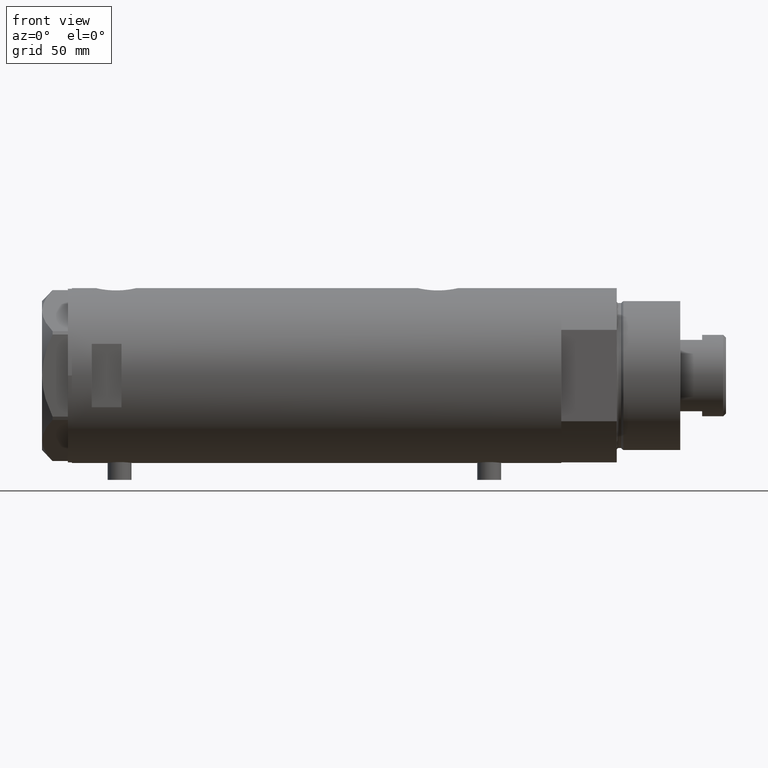
[diagram: clean part render]
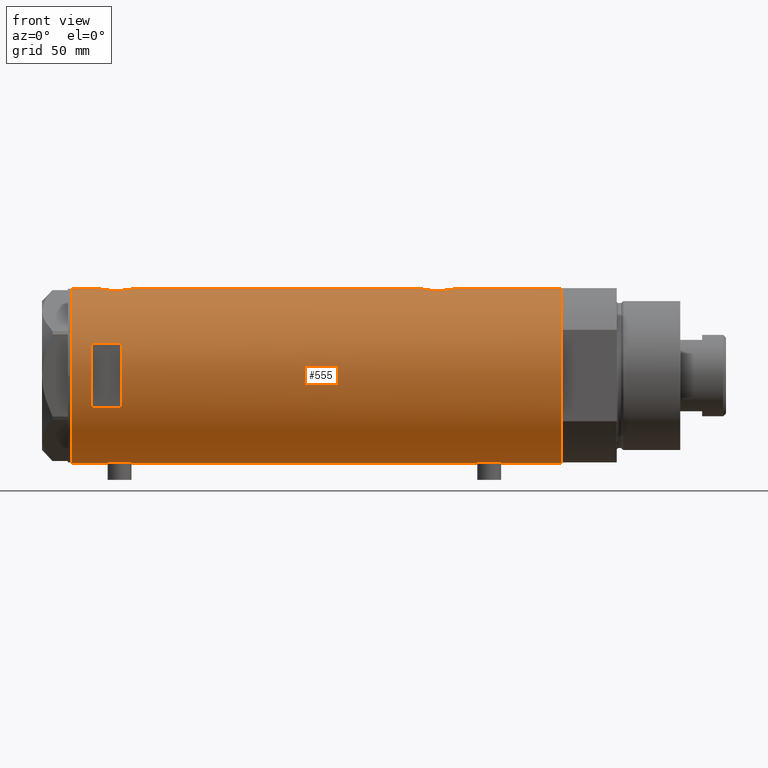
[diagram: same view with one face highlighted and labeled with its STEP entity id]
A machine part, front view. The second image highlights one B-rep face of the part: STEP entity #555.
In plain terms, the highlighted cylindrical surface (partial cylindrical patch) has radius 44 mm, axis along (-1, -0, 0).
Its self-contained STEP definition (entity closure, byte-faithful):
#6 = CARTESIAN_POINT ( 'NONE',  ( 43.07447880731471201, -8.980869115410033743, 105.3470997020410636 ) ) ;
#12 = DIRECTION ( 'NONE',  ( 0.000000000000000000, 0.000000000000000000, 1.000000000000000000 ) ) ;
#31 = CARTESIAN_POINT ( 'NONE',  ( 43.68175117880464597, -5.289576318274436417, -52.60722456708441541 ) ) ;
#58 = CARTESIAN_POINT ( 'NONE',  ( -44.00000000000000000, 5.388445916248352830E-15, -123.2000000000000028 ) ) ;
#71 = CARTESIAN_POINT ( 'NONE',  ( 44.00000000000000000, 0.000000000000000000, -123.2000000000000028 ) ) ;
#73 = CARTESIAN_POINT ( 'NONE',  ( 42.96573602780769363, -9.487415353952515673, -64.32734544583620107 ) ) ;
#87 = VERTEX_POINT ( 'NONE', #1643 ) ;
#129 = CARTESIAN_POINT ( 'NONE',  ( 44.00000000000000000, 0.000000000000000000, 123.2000000000000028 ) ) ;
#130 = EDGE_CURVE ( 'NONE', #1613, #1288, #4300, .T. ) ;
#177 = ORIENTED_EDGE ( 'NONE', *, *, #3577, .F. ) ;
#179 = EDGE_CURVE ( 'NONE', #1937, #1910, #1751, .T. ) ;
#183 = CARTESIAN_POINT ( 'NONE',  ( -43.66469451360046605, -5.426465874727614214, -83.77225408135791440 ) ) ;
#201 = CARTESIAN_POINT ( 'NONE',  ( 43.94187300917954531, -2.283844398366606132, -70.84126046817048916 ) ) ;
#206 = CARTESIAN_POINT ( 'NONE',  ( -43.71916086763248899, -4.968610719017467758, -90.71335998854627292 ) ) ;
#249 = CARTESIAN_POINT ( 'NONE',  ( -44.00000000000000000, 5.388445916248352830E-15, 123.2000000000000028 ) ) ;
#254 = CARTESIAN_POINT ( 'NONE',  ( 43.39114022679085281, -7.298186114522533074, 107.7441727949206438 ) ) ;
#270 = AXIS2_PLACEMENT_3D ( 'NONE', #3026, #2693, #1945 ) ;
#279 = CARTESIAN_POINT ( 'NONE',  ( -43.91347832647111460, -2.763895659397271221, -92.50938649377584966 ) ) ;
#281 = CARTESIAN_POINT ( 'NONE',  ( 43.24269204559828239, -8.130405600641543273, 106.7311450280699319 ) ) ;
#310 = CARTESIAN_POINT ( 'NONE',  ( -44.00000000000000711, -0.4134142287044841879, 105.4500000000000313 ) ) ;
#313 = CARTESIAN_POINT ( 'NONE',  ( -44.00000000000000000, 5.388445781982983516E-15, 92.95000000000000284 ) ) ;
#328 = CARTESIAN_POINT ( 'NONE',  ( 42.86761451923558042, -9.918101748202657220, 102.2186752354962636 ) ) ;
#329 = CARTESIAN_POINT ( 'NONE',  ( -43.93596008603759628, -2.395372424984027138, 93.41650819469390399 ) ) ;
#350 = CARTESIAN_POINT ( 'NONE',  ( -43.66469451360045895, -5.426465874727613325, 102.3277459186421083 ) ) ;
#367 = EDGE_CURVE ( 'NONE', #2697, #475, #2661, .T. ) ;
#385 = CARTESIAN_POINT ( 'NONE',  ( 43.88549648731375896, -3.229309612650775652, -51.61335697513614207 ) ) ;
#394 = DIRECTION ( 'NONE',  ( 0.000000000000000000, 0.000000000000000000, 1.000000000000000000 ) ) ;
#409 = LINE ( 'NONE', #58, #3458 ) ;
#421 = DIRECTION ( 'NONE',  ( 1.776356839400250465E-15, 1.000000000000000000, 4.731064025391292434E-15 ) ) ;
#423 = CARTESIAN_POINT ( 'NONE',  ( 42.92612181419236350, -9.662173761604318400, -58.50200210390288191 ) ) ;
#447 = CARTESIAN_POINT ( 'NONE',  ( 43.35257225115238100, -7.523216248090028202, -67.69605303592346957 ) ) ;
#467 = CARTESIAN_POINT ( 'NONE',  ( 44.00000000000000000, -3.917167710965456221E-21, -51.10000000000000853 ) ) ;
#475 = VERTEX_POINT ( 'NONE', #834 ) ;
#510 = CARTESIAN_POINT ( 'NONE',  ( 44.00000000000000000, -1.742910476879209922E-15, -71.10000000000000853 ) ) ;
#515 = VERTEX_POINT ( 'NONE', #3652 ) ;
#516 = CARTESIAN_POINT ( 'NONE',  ( 0.000000000000000000, 0.000000000000000000, 123.2000000000000028 ) ) ;
#526 = ORIENTED_EDGE ( 'NONE', *, *, #1513, .F. ) ;
#540 = CARTESIAN_POINT ( 'NONE',  ( -43.55380622335315621, -6.250277076879245719, -86.49110166609810335 ) ) ;
#548 = ORIENTED_EDGE ( 'NONE', *, *, #3021, .F. ) ;
#555 = ADVANCED_FACE ( 'NONE', ( #2637, #923 ), #3276, .T. ) ;
#562 = CARTESIAN_POINT ( 'NONE',  ( -44.00000000000000711, -0.4134142287044829667, -80.65000000000003411 ) ) ;
#589 = CARTESIAN_POINT ( 'NONE',  ( -43.97755541524607281, -1.419649999726221967, -92.99011143923634393 ) ) ;
#610 = CARTESIAN_POINT ( 'NONE',  ( -44.00000000000000000, 5.388445781982983516E-15, -93.15000000000000568 ) ) ;
#625 = CARTESIAN_POINT ( 'NONE',  ( -15.96871942267132027, -40.99999999999999289, 113.1999999999999886 ) ) ;
#633 = CARTESIAN_POINT ( 'NONE',  ( 43.57553740812846144, -6.102230194686623754, 92.97100344011330719 ) ) ;
#685 = CARTESIAN_POINT ( 'NONE',  ( 43.46477581456304051, -6.845969322274853219, 93.60355539876690045 ) ) ;
#727 = CARTESIAN_POINT ( 'NONE',  ( -43.88927795770376861, -3.124736516396338981, 93.78332595076190614 ) ) ;
#753 = CARTESIAN_POINT ( 'NONE',  ( 43.13833976206234411, -8.672905216733562739, -56.07967078979188358 ) ) ;
#769 = CARTESIAN_POINT ( 'NONE',  ( 44.00000000000000000, -3.917167710965456221E-21, -51.10000000000000853 ) ) ;
#773 = CARTESIAN_POINT ( 'NONE',  ( 42.84860178791322483, -9.999866241079299556, -60.76603617305838156 ) ) ;
#834 = CARTESIAN_POINT ( 'NONE',  ( 44.00000000000000000, -1.742910476879209922E-15, -71.10000000000000853 ) ) ;
#846 = EDGE_CURVE ( 'NONE', #3379, #4404, #1308, .T. ) ;
#910 = CARTESIAN_POINT ( 'NONE',  ( -43.99417593155913409, -0.8219945290704695484, -80.69061897587040733 ) ) ;
#913 = ORIENTED_EDGE ( 'NONE', *, *, #367, .T. ) ;
#922 = CARTESIAN_POINT ( 'NONE',  ( 0.000000000000000000, 0.000000000000000000, 98.20000000000017337 ) ) ;
#923 = FACE_BOUND ( 'NONE', #3270, .T. ) ;
#944 = AXIS2_PLACEMENT_3D ( 'NONE', #4255, #3231, #2120 ) ;
#945 = VERTEX_POINT ( 'NONE', #2409 ) ;
#955 = CARTESIAN_POINT ( 'NONE',  ( -43.80686114384899810, -4.128296917151111245, -91.61015855128310648 ) ) ;
#958 = CARTESIAN_POINT ( 'NONE',  ( 43.24192112218942441, -8.134529092006104634, 95.07447770135891574 ) ) ;
#983 = CARTESIAN_POINT ( 'NONE',  ( 43.88203303552250389, -3.235230624304763047, 91.43207386936016690 ) ) ;
#985 = CARTESIAN_POINT ( 'NONE',  ( -43.94477385411916970, -2.211843467998030111, 105.0490722992286692 ) ) ;
#1002 = CARTESIAN_POINT ( 'NONE',  ( -43.87623998657198143, -3.302247739865013632, 93.88965656480257849 ) ) ;
#1007 = LINE ( 'NONE', #3132, #1104 ) ;
#1025 = CARTESIAN_POINT ( 'NONE',  ( 43.85817087158036998, -3.542878095418176887, 91.54296338884479667 ) ) ;
#1051 = CARTESIAN_POINT ( 'NONE',  ( 42.92195198079052432, -9.681069926205539744, 98.31067499093484230 ) ) ;
#1052 = CARTESIAN_POINT ( 'NONE',  ( -43.97729452866928312, -1.427712738744850496, 105.2882290744342413 ) ) ;
#1068 = EDGE_CURVE ( 'NONE', #1910, #4274, #3158, .T. ) ;
#1072 = CARTESIAN_POINT ( 'NONE',  ( 42.99316244204495518, -9.359736474891656499, -57.56396979967825445 ) ) ;
#1073 = CARTESIAN_POINT ( 'NONE',  ( -43.80686114384899810, -4.128296917151111245, 94.48984144871687363 ) ) ;
#1104 = VECTOR ( 'NONE', #2795, 1000.000000000000000 ) ;
#1125 = CARTESIAN_POINT ( 'NONE',  ( 43.68175117880464597, -5.289576318274434641, 109.3927754329155846 ) ) ;
#1139 = CARTESIAN_POINT ( 'NONE',  ( 43.13689707656755701, -8.680169016269177362, -66.10836902111202562 ) ) ;
#1186 = CARTESIAN_POINT ( 'NONE',  ( 43.77905627191558580, -4.445085099228549552, -70.08140834316036205 ) ) ;
#1189 = ORIENTED_EDGE ( 'NONE', *, *, #130, .T. ) ;
#1190 = CARTESIAN_POINT ( 'NONE',  ( 15.96871942267132027, -40.99999999999999289, 113.1999999999999886 ) ) ;
#1211 = VERTEX_POINT ( 'NONE', #769 ) ;
#1233 = CARTESIAN_POINT ( 'NONE',  ( -43.88927795770376861, -3.124736516396338093, -92.31667404923808817 ) ) ;
#1261 = CARTESIAN_POINT ( 'NONE',  ( -43.83513771791773905, -3.820747781112549646, -81.93678981703629916 ) ) ;
#1285 = B_SPLINE_CURVE_WITH_KNOTS ( 'NONE', 3,
 ( #2559, #1441, #2860, #2520, #2150, #3218, #2198, #3265, #1125, #4145, #3429, #254, #1664, #3768, #281, #3473, #6, #2813, #2444, #1734, #2056, #328, #1754, #1691, #4195, #1417, #1051, #3808, #2025, #1364, #958, #1347, #3079, #4460, #685, #2789, #633, #3106, #2749, #1713, #1025, #983, #2767, #2470, #3494, #2395, #4484 ),
 .UNSPECIFIED., .F., .F.,
 ( 4, 2, 2, 2, 2, 2, 2, 2, 2, 2, 1, 2, 2, 2, 2, 2, 2, 2, 2, 2, 2, 2, 2, 4 ),
 ( 0.03136730421198211799, 0.03332724096696803445, 0.03528717772195395785, 0.03626714609944691609, 0.03724711447693987432, 0.03920705123192579078, 0.04018701960941873513, 0.04116698798691167949, 0.04312692474189759595, 0.04410689311939056112, 0.04508686149688351935, 0.04606682987437648452, 0.04704679825186944275, 0.04900673500685531758, 0.05096667176184120629, 0.05292660851682708112, 0.05390657689432002547, 0.05488654527181296983, 0.05586651364930590724, 0.05684648202679884466, 0.05880641878178471949, 0.05978638715927767078, 0.06076635553677062207, 0.06272629229175652465 ),
 .UNSPECIFIED. ) ;
#1288 = VERTEX_POINT ( 'NONE', #129 ) ;
#1299 = CARTESIAN_POINT ( 'NONE',  ( -43.59959777593761743, -5.922725608094073557, -84.89350688782587895 ) ) ;
#1301 = CARTESIAN_POINT ( 'NONE',  ( -43.97755541524607992, -1.419649999726222633, 93.10988856076367881 ) ) ;
#1308 = B_SPLINE_CURVE_WITH_KNOTS ( 'NONE', 3,
 ( #3409, #3057, #4440, #1301, #3879, #2491, #329, #2471, #727, #1002, #1756, #1073, #3509, #1365, #4146, #4508, #1692, #3538, #3495, #4462, #1392, #2790, #3080, #1736, #2396, #1328, #4485, #3107, #3474, #350, #3147, #2750, #4129, #4170, #2128, #3838, #985, #2076, #2416, #1052, #3789, #310, #2026 ),
 .UNSPECIFIED., .F., .F.,
 ( 4, 2, 2, 1, 2, 2, 2, 2, 2, 2, 2, 2, 2, 2, 2, 2, 2, 2, 2, 2, 2, 4 ),
 ( 0.01956509074799517994, 0.02078761141254040559, 0.02139887174481301668, 0.02201013207708562777, 0.02262139240935823886, 0.02323265274163085342, 0.02445517340617609642, 0.02567769407072134288, 0.02690021473526658935, 0.02751147506753921085, 0.02812273539981183582, 0.02934525606435712392, 0.03056777672890240855, 0.03117903706117505433, 0.03179029739344770011, 0.03301281805799302638, 0.03423533872253834570, 0.03545785938708367196, 0.03668038005162899129, 0.03729164038390166136, 0.03790290071617431755, 0.03912542138071964382 ),
 .UNSPECIFIED. ) ;
#1325 = CARTESIAN_POINT ( 'NONE',  ( -43.97729452866927602, -1.427712738744856047, -80.81177092556575303 ) ) ;
#1328 = CARTESIAN_POINT ( 'NONE',  ( -43.58327167020068771, -6.041691433183236981, 100.8132755078336658 ) ) ;
#1347 = CARTESIAN_POINT ( 'NONE',  ( 43.27861175590268061, -7.937636171351964975, 94.80897132009003769 ) ) ;
#1364 = CARTESIAN_POINT ( 'NONE',  ( 43.13689707656756411, -8.680169016269172033, 95.89163097888801701 ) ) ;
#1365 = CARTESIAN_POINT ( 'NONE',  ( -43.71916086763249609, -4.968610719017477528, 95.38664001145379245 ) ) ;
#1370 = CARTESIAN_POINT ( 'NONE',  ( 44.00000000000000000, 0.000000000000000000, -123.2000000000000028 ) ) ;
#1376 = VECTOR ( 'NONE', #2550, 1000.000000000000000 ) ;
#1392 = CARTESIAN_POINT ( 'NONE',  ( -43.55981666146651321, -6.208773019004409477, 98.37562000806386209 ) ) ;
#1417 = CARTESIAN_POINT ( 'NONE',  ( 42.86369059155247641, -9.935849517229275563, 99.59362589981802216 ) ) ;
#1441 = CARTESIAN_POINT ( 'NONE',  ( 43.99999999999999289, -0.6537011444665493665, 110.9000000000000057 ) ) ;
#1462 = CARTESIAN_POINT ( 'NONE',  ( 42.96858625215907779, -9.471543237354843825, -57.87555220689220192 ) ) ;
#1486 = CARTESIAN_POINT ( 'NONE',  ( 15.96871942267131672, -40.99999999999999289, -123.2000000000000028 ) ) ;
#1507 = CARTESIAN_POINT ( 'NONE',  ( 43.07447880731470491, -8.980869115410037296, -56.65290029795897198 ) ) ;
#1513 = EDGE_CURVE ( 'NONE', #4404, #4382, #409, .T. ) ;
#1518 = EDGE_CURVE ( 'NONE', #1211, #515, #3207, .T. ) ;
#1546 = EDGE_CURVE ( 'NONE', #87, #945, #1806, .T. ) ;
#1556 = DIRECTION ( 'NONE',  ( 0.000000000000000000, 0.000000000000000000, 1.000000000000000000 ) ) ;
#1557 = ORIENTED_EDGE ( 'NONE', *, *, #1546, .F. ) ;
#1566 = ORIENTED_EDGE ( 'NONE', *, *, #2965, .F. ) ;
#1590 = EDGE_LOOP ( 'NONE', ( #1557, #4429, #913, #548, #2249, #1566, #1189, #3843, #526, #4029, #3416, #177 ) ) ;
#1591 = CARTESIAN_POINT ( 'NONE',  ( 43.98503203903424463, -1.316644100880400403, -71.03472955295633540 ) ) ;
#1613 = VERTEX_POINT ( 'NONE', #1717 ) ;
#1625 = CARTESIAN_POINT ( 'NONE',  ( -43.99432382855035684, -0.8140126287075731826, -93.11042166816913834 ) ) ;
#1643 = CARTESIAN_POINT ( 'NONE',  ( -44.00000000000000000, 5.388445916248352830E-15, -123.2000000000000028 ) ) ;
#1645 = CARTESIAN_POINT ( 'NONE',  ( -43.57664920749031268, -6.089110472216499481, -88.32363086869412427 ) ) ;
#1663 = CARTESIAN_POINT ( 'NONE',  ( -43.66524845950889500, -5.422010366683132965, -90.03538043352982356 ) ) ;
#1664 = CARTESIAN_POINT ( 'NONE',  ( 43.35323102813806884, -7.519449998269471358, 107.5004228928426784 ) ) ;
#1691 = CARTESIAN_POINT ( 'NONE',  ( 42.84860178791322483, -9.999866241079297779, 101.2339638269416326 ) ) ;
#1692 = CARTESIAN_POINT ( 'NONE',  ( -43.60943079847654502, -5.850114217193380206, 96.99078124073395202 ) ) ;
#1713 = CARTESIAN_POINT ( 'NONE',  ( 43.77905627191557159, -4.445085099228552217, 91.91859165683966637 ) ) ;
#1717 = CARTESIAN_POINT ( 'NONE',  ( 44.00000000000000000, -3.917104602093038540E-21, 110.9000000000000057 ) ) ;
#1734 = CARTESIAN_POINT ( 'NONE',  ( 42.92612181419235640, -9.662173761604311295, 103.4979978960971465 ) ) ;
#1736 = CARTESIAN_POINT ( 'NONE',  ( -43.55964145621771877, -6.209995197331127592, 100.0152361338357565 ) ) ;
#1748 = CARTESIAN_POINT ( 'NONE',  ( -44.00000000000000000, 4.945856149313706956E-16, 105.4500000000000171 ) ) ;
#1751 = LINE ( 'NONE', #1486, #1376 ) ;
#1754 = CARTESIAN_POINT ( 'NONE',  ( 42.85249883256043546, -9.983208936152870194, 101.5657221654182081 ) ) ;
#1756 = CARTESIAN_POINT ( 'NONE',  ( -43.83572624786197025, -3.813948911733267888, 94.23163569779339355 ) ) ;
#1789 = DIRECTION ( 'NONE',  ( 0.000000000000000000, 0.000000000000000000, 1.000000000000000000 ) ) ;
#1799 = CARTESIAN_POINT ( 'NONE',  ( 43.50370990764397305, -6.606474645717129945, -53.56479064715112770 ) ) ;
#1803 = DIRECTION ( 'NONE',  ( 0.000000000000000000, 0.000000000000000000, 1.000000000000000000 ) ) ;
#1806 = LINE ( 'NONE', #3225, #3815 ) ;
#1819 = CARTESIAN_POINT ( 'NONE',  ( 42.92195198079052432, -9.681069926205545073, -63.68932500906514349 ) ) ;
#1844 = CARTESIAN_POINT ( 'NONE',  ( 43.46477581456304051, -6.845969322274835456, -68.39644460123312797 ) ) ;
#1910 = VERTEX_POINT ( 'NONE', #1190 ) ;
#1936 = CARTESIAN_POINT ( 'NONE',  ( -43.60904414879381363, -5.852991024272605536, -84.69843683347096430 ) ) ;
#1937 = VERTEX_POINT ( 'NONE', #3036 ) ;
#1945 = DIRECTION ( 'NONE',  ( 1.000000000000000000, 0.000000000000000000, 0.000000000000000000 ) ) ;
#1953 = EDGE_CURVE ( 'NONE', #4382, #1288, #3166, .T. ) ;
#1957 = CARTESIAN_POINT ( 'NONE',  ( -43.74870614644073896, -4.704745394280564597, -91.03446487340028170 ) ) ;
#1986 = CARTESIAN_POINT ( 'NONE',  ( -43.59994860325051036, -5.920144153815573240, -88.91406357569761099 ) ) ;
#2004 = CARTESIAN_POINT ( 'NONE',  ( -43.97029046111975958, -1.628482392291955128, -80.86241380207945895 ) ) ;
#2024 = CARTESIAN_POINT ( 'NONE',  ( -43.58327167020068060, -6.041691433183235205, -85.28672449216634277 ) ) ;
#2025 = CARTESIAN_POINT ( 'NONE',  ( 43.07321175413310499, -8.986876637256992595, 96.46571798011248688 ) ) ;
#2026 = CARTESIAN_POINT ( 'NONE',  ( -44.00000000000000000, 4.945856149313706956E-16, 105.4500000000000171 ) ) ;
#2044 = VERTEX_POINT ( 'NONE', #4063 ) ;
#2056 = CARTESIAN_POINT ( 'NONE',  ( 42.89003040145177437, -9.821289533110936887, 102.8649162832999338 ) ) ;
#2076 = CARTESIAN_POINT ( 'NONE',  ( -43.95404166778756405, -2.020054257598453695, 105.1180894548565590 ) ) ;
#2120 = DIRECTION ( 'NONE',  ( 1.000000000000000000, 0.000000000000000000, 0.000000000000000000 ) ) ;
#2128 = CARTESIAN_POINT ( 'NONE',  ( -43.88932649443422918, -3.137583818903200594, 104.6209903805954298 ) ) ;
#2147 = CARTESIAN_POINT ( 'NONE',  ( 43.92776409818818451, -2.602555515054471247, -51.42196650712919137 ) ) ;
#2150 = CARTESIAN_POINT ( 'NONE',  ( 43.88549648731377317, -3.229309612650767658, 110.3866430248638864 ) ) ;
#2190 = CARTESIAN_POINT ( 'NONE',  ( 43.27861175590267351, -7.937636171351968528, -67.19102867990997652 ) ) ;
#2198 = CARTESIAN_POINT ( 'NONE',  ( 43.77763691689008851, -4.427538730370032205, 109.8724271220806941 ) ) ;
#2213 = CARTESIAN_POINT ( 'NONE',  ( 43.35323102813806173, -7.519449998269467805, -54.49957710715733583 ) ) ;
#2232 = CARTESIAN_POINT ( 'NONE',  ( 43.92391465552168484, -2.605621203777297001, -70.76018015101780634 ) ) ;
#2249 = ORIENTED_EDGE ( 'NONE', *, *, #1518, .T. ) ;
#2291 = CARTESIAN_POINT ( 'NONE',  ( -43.60943079847655213, -5.850114217193378430, -89.10921875926607072 ) ) ;
#2316 = CARTESIAN_POINT ( 'NONE',  ( -43.94477385411918391, -2.211843467998029222, -81.05092770077139619 ) ) ;
#2324 = ORIENTED_EDGE ( 'NONE', *, *, #179, .F. ) ;
#2340 = CARTESIAN_POINT ( 'NONE',  ( -43.93596008603758207, -2.395372424984026694, -92.68349180530613296 ) ) ;
#2361 = ORIENTED_EDGE ( 'NONE', *, *, #3851, .F. ) ;
#2370 = CARTESIAN_POINT ( 'NONE',  ( -43.57636709704393496, -6.091127289750673413, -85.48500674339014438 ) ) ;
#2393 = CARTESIAN_POINT ( 'NONE',  ( -43.83572624786197025, -3.813948911733269664, -91.86836430220658656 ) ) ;
#2395 = CARTESIAN_POINT ( 'NONE',  ( 44.00000000000000000, -0.6628808997490054367, 90.90000000000001990 ) ) ;
#2396 = CARTESIAN_POINT ( 'NONE',  ( -43.57636709704395628, -6.091127289750674301, 100.6149932566099068 ) ) ;
#2409 = CARTESIAN_POINT ( 'NONE',  ( -44.00000000000000000, 5.388445781982983516E-15, -93.15000000000000568 ) ) ;
#2416 = CARTESIAN_POINT ( 'NONE',  ( -43.97029046111977379, -1.628482392291941805, 105.2375861979205922 ) ) ;
#2432 = VECTOR ( 'NONE', #1789, 1000.000000000000000 ) ;
#2444 = CARTESIAN_POINT ( 'NONE',  ( 42.96858625215907779, -9.471543237354833167, 104.1244477931078194 ) ) ;
#2470 = CARTESIAN_POINT ( 'NONE',  ( 43.94187300917955952, -2.283844398366603912, 91.15873953182952505 ) ) ;
#2471 = CARTESIAN_POINT ( 'NONE',  ( -43.91347832647110039, -2.763895659397272553, 93.59061350622417308 ) ) ;
#2490 = CARTESIAN_POINT ( 'NONE',  ( 42.85249883256042835, -9.983208936152877300, -60.43427783458179192 ) ) ;
#2491 = CARTESIAN_POINT ( 'NONE',  ( -43.95442538259509035, -2.011679190499021441, 93.27906453490220429 ) ) ;
#2496 = LINE ( 'NONE', #3543, #4328 ) ;
#2513 = CARTESIAN_POINT ( 'NONE',  ( 43.39114022679083860, -7.298186114522538404, -54.25582720507937751 ) ) ;
#2520 = CARTESIAN_POINT ( 'NONE',  ( 43.92776409818817740, -2.602555515054468582, 110.5780334928707447 ) ) ;
#2550 = DIRECTION ( 'NONE',  ( 0.000000000000000000, 0.000000000000000000, 1.000000000000000000 ) ) ;
#2559 = CARTESIAN_POINT ( 'NONE',  ( 44.00000000000000000, -3.917104602093038540E-21, 110.9000000000000057 ) ) ;
#2575 = CARTESIAN_POINT ( 'NONE',  ( 43.57790701154751645, -6.104591320335877924, -53.15258699105065432 ) ) ;
#2637 = FACE_OUTER_BOUND ( 'NONE', #1590, .T. ) ;
#2649 = CARTESIAN_POINT ( 'NONE',  ( -43.97059312650996787, -1.620278982928820444, -92.93978691385871116 ) ) ;
#2661 = LINE ( 'NONE', #1370, #3150 ) ;
#2680 = CARTESIAN_POINT ( 'NONE',  ( -43.91398925748691795, -2.775454910411441656, -81.28529224318936031 ) ) ;
#2692 = DIRECTION ( 'NONE',  ( 0.000000000000000000, 0.000000000000000000, 1.000000000000000000 ) ) ;
#2693 = DIRECTION ( 'NONE',  ( 0.000000000000000000, 0.000000000000000000, 1.000000000000000000 ) ) ;
#2697 = VERTEX_POINT ( 'NONE', #4426 ) ;
#2735 = CIRCLE ( 'NONE', #3308, 44.00000000000000000 ) ;
#2747 = CARTESIAN_POINT ( 'NONE',  ( -43.80623767923740530, -4.134861581628530125, -82.19563632739304637 ) ) ;
#2749 = CARTESIAN_POINT ( 'NONE',  ( 43.71626298452613923, -5.019105827807311293, 92.22586562020403278 ) ) ;
#2750 = CARTESIAN_POINT ( 'NONE',  ( -43.74813644611200658, -4.709999724143498767, 103.3284404394322848 ) ) ;
#2767 = CARTESIAN_POINT ( 'NONE',  ( 43.92391465552169905, -2.605621203777302775, 91.23981984898226472 ) ) ;
#2789 = CARTESIAN_POINT ( 'NONE',  ( 43.50208939911752992, -6.605519787823896039, 93.38512753745570194 ) ) ;
#2790 = CARTESIAN_POINT ( 'NONE',  ( -43.55388615229804117, -6.249720082677240107, 98.78267485888017063 ) ) ;
#2795 = DIRECTION ( 'NONE',  ( -0.000000000000000000, -0.000000000000000000, -1.000000000000000000 ) ) ;
#2803 = ORIENTED_EDGE ( 'NONE', *, *, #2851, .F. ) ;
#2807 = AXIS2_PLACEMENT_3D ( 'NONE', #3365, #2692, #3729 ) ;
#2813 = CARTESIAN_POINT ( 'NONE',  ( 42.99316244204494808, -9.359736474891649394, 104.4360302003217527 ) ) ;
#2851 = EDGE_CURVE ( 'NONE', #4274, #4322, #1007, .T. ) ;
#2860 = CARTESIAN_POINT ( 'NONE',  ( 43.98543813568863214, -1.304985013906734714, 110.8365306627388378 ) ) ;
#2881 = CARTESIAN_POINT ( 'NONE',  ( 42.89003040145176726, -9.821289533110936887, -59.13508371670006625 ) ) ;
#2896 = DIRECTION ( 'NONE',  ( 0.000000000000000000, 0.000000000000000000, 1.000000000000000000 ) ) ;
#2902 = B_SPLINE_CURVE_WITH_KNOTS ( 'NONE', 3,
 ( #467, #4236, #3970, #2147, #385, #3240, #3281, #2907, #31, #2575, #1799, #2513, #2213, #3215, #4214, #753, #1507, #1072, #1462, #423, #2881, #4262, #2490, #773, #3574, #3599, #1819, #73, #4280, #1139, #3947, #2190, #447, #3878, #1844, #3260, #2926, #4302, #4345, #1186, #4081, #2950, #2232, #201, #1591, #3006, #510 ),
 .UNSPECIFIED., .F., .F.,
 ( 4, 2, 2, 2, 2, 2, 2, 2, 2, 2, 1, 2, 2, 2, 2, 2, 2, 2, 2, 2, 2, 2, 2, 4 ),
 ( 0.03136730421198213187, 0.03332724096696806221, 0.03528717772195399255, 0.03626714609944695078, 0.03724711447693991595, 0.03920705123192583241, 0.04018701960941878371, 0.04116698798691173500, 0.04312692474189763758, 0.04410689311939058888, 0.04508686149688354017, 0.04606682987437649146, 0.04704679825186944275, 0.04900673500685532452, 0.05096667176184120629, 0.05292660851682708806, 0.05390657689432004629, 0.05488654527181299758, 0.05586651364930594887, 0.05684648202679890711, 0.05880641878178481663, 0.05978638715927775404, 0.06076635553677070534, 0.06272629229175658017 ),
 .UNSPECIFIED. ) ;
#2907 = CARTESIAN_POINT ( 'NONE',  ( 43.71528002050703066, -5.005885132985644859, -52.43693693285515423 ) ) ;
#2926 = CARTESIAN_POINT ( 'NONE',  ( 43.57553740812844723, -6.102230194686620202, -69.02899655988672123 ) ) ;
#2940 = EDGE_CURVE ( 'NONE', #2044, #3379, #2496, .T. ) ;
#2950 = CARTESIAN_POINT ( 'NONE',  ( 43.88203303552250389, -3.235230624304761715, -70.56792613063983310 ) ) ;
#2952 = DIRECTION ( 'NONE',  ( 1.000000000000000000, 0.000000000000000000, 0.000000000000000000 ) ) ;
#2959 = CIRCLE ( 'NONE', #2807, 44.00000000000000000 ) ;
#2965 = EDGE_CURVE ( 'NONE', #1613, #515, #1285, .T. ) ;
#2982 = ORIENTED_EDGE ( 'NONE', *, *, #1068, .F. ) ;
#3006 = CARTESIAN_POINT ( 'NONE',  ( 43.99999999999999289, -0.6628808997490076571, -71.09999999999999432 ) ) ;
#3021 = EDGE_CURVE ( 'NONE', #1211, #475, #2902, .T. ) ;
#3026 = CARTESIAN_POINT ( 'NONE',  ( 0.000000000000000000, 0.000000000000000000, -123.2000000000000028 ) ) ;
#3036 = CARTESIAN_POINT ( 'NONE',  ( 15.96871942267132027, -40.99999999999999289, 98.19999999999998863 ) ) ;
#3037 = CARTESIAN_POINT ( 'NONE',  ( -43.95442538259509746, -2.011679190499022774, -92.82093546509779003 ) ) ;
#3055 = CARTESIAN_POINT ( 'NONE',  ( -43.87623998657197433, -3.302247739865014964, -92.21034343519743004 ) ) ;
#3057 = CARTESIAN_POINT ( 'NONE',  ( -44.00000000000000711, -0.4080709675389188051, 92.95000000000001705 ) ) ;
#3078 = CARTESIAN_POINT ( 'NONE',  ( -43.74813644611201369, -4.709999724143497879, -82.77155956056772368 ) ) ;
#3079 = CARTESIAN_POINT ( 'NONE',  ( 43.35257225115236679, -7.523216248090024649, 94.30394696407654465 ) ) ;
#3080 = CARTESIAN_POINT ( 'NONE',  ( -43.55380622335317042, -6.250277076879246607, 99.60889833390191939 ) ) ;
#3106 = CARTESIAN_POINT ( 'NONE',  ( 43.61181667275830875, -5.838254419127776096, 92.77455890582506015 ) ) ;
#3107 = CARTESIAN_POINT ( 'NONE',  ( -43.60904414879381363, -5.852991024272606424, 101.4015631665291437 ) ) ;
#3132 = CARTESIAN_POINT ( 'NONE',  ( -15.96871942267131672, -40.99999999999999289, -123.2000000000000028 ) ) ;
#3147 = CARTESIAN_POINT ( 'NONE',  ( -43.71863308610075904, -4.973248429199019327, 103.0073779012117541 ) ) ;
#3150 = VECTOR ( 'NONE', #12, 1000.000000000000000 ) ;
#3158 = CIRCLE ( 'NONE', #944, 44.00000000000000000 ) ;
#3166 = CIRCLE ( 'NONE', #3744, 44.00000000000000000 ) ;
#3207 = LINE ( 'NONE', #3921, #2432 ) ;
#3215 = CARTESIAN_POINT ( 'NONE',  ( 43.27890888111422640, -7.936045294464967093, -55.00681563342806868 ) ) ;
#3218 = CARTESIAN_POINT ( 'NONE',  ( 43.80655905412561424, -4.132395729537624796, 110.0120532619376235 ) ) ;
#3225 = CARTESIAN_POINT ( 'NONE',  ( -44.00000000000000000, 5.388445916248352830E-15, -123.2000000000000028 ) ) ;
#3231 = DIRECTION ( 'NONE',  ( -0.000000000000000000, 0.000000000000000000, -1.000000000000000000 ) ) ;
#3240 = CARTESIAN_POINT ( 'NONE',  ( 43.80655905412561424, -4.132395729537631901, -51.98794673806236233 ) ) ;
#3260 = CARTESIAN_POINT ( 'NONE',  ( 43.50208939911752282, -6.605519787823896039, -68.61487246254429806 ) ) ;
#3265 = CARTESIAN_POINT ( 'NONE',  ( 43.71528002050701645, -5.005885132985632424, 109.5630630671448813 ) ) ;
#3270 = EDGE_LOOP ( 'NONE', ( #2361, #2803, #2982, #2324 ) ) ;
#3276 = CYLINDRICAL_SURFACE ( 'NONE', #270, 44.00000000000000000 ) ;
#3281 = CARTESIAN_POINT ( 'NONE',  ( 43.77763691689010983, -4.427538730370041087, -52.12757287791930594 ) ) ;
#3308 = AXIS2_PLACEMENT_3D ( 'NONE', #922, #3344, #421 ) ;
#3344 = DIRECTION ( 'NONE',  ( -0.000000000000000000, -4.625929269271481378E-15, 1.000000000000000000 ) ) ;
#3365 = CARTESIAN_POINT ( 'NONE',  ( 0.000000000000000000, 0.000000000000000000, -123.2000000000000028 ) ) ;
#3379 = VERTEX_POINT ( 'NONE', #313 ) ;
#3409 = CARTESIAN_POINT ( 'NONE',  ( -44.00000000000000000, 5.388445781982983516E-15, 92.95000000000000284 ) ) ;
#3416 = ORIENTED_EDGE ( 'NONE', *, *, #2940, .F. ) ;
#3429 = CARTESIAN_POINT ( 'NONE',  ( 43.50370990764398016, -6.606474645717128169, 108.4352093528488865 ) ) ;
#3458 = VECTOR ( 'NONE', #394, 1000.000000000000000 ) ;
#3473 = CARTESIAN_POINT ( 'NONE',  ( 43.13833976206233700, -8.672905216733552081, 105.9203292102081804 ) ) ;
#3474 = CARTESIAN_POINT ( 'NONE',  ( -43.64013512596971367, -5.618144550806293047, 101.9688425437316539 ) ) ;
#3494 = CARTESIAN_POINT ( 'NONE',  ( 43.98503203903425884, -1.316644100880397072, 90.96527044704372145 ) ) ;
#3495 = CARTESIAN_POINT ( 'NONE',  ( -43.58358352828437177, -6.039443007521655638, 97.57836901614263070 ) ) ;
#3509 = CARTESIAN_POINT ( 'NONE',  ( -43.74870614644074607, -4.704745394280565485, 95.06553512659974103 ) ) ;
#3538 = CARTESIAN_POINT ( 'NONE',  ( -43.59994860325051036, -5.920144153815573240, 97.18593642430241175 ) ) ;
#3543 = CARTESIAN_POINT ( 'NONE',  ( -44.00000000000000000, 5.388445916248352830E-15, -123.2000000000000028 ) ) ;
#3574 = CARTESIAN_POINT ( 'NONE',  ( 42.84850870634925712, -10.00026508230968858, -61.75583915121742251 ) ) ;
#3577 = EDGE_CURVE ( 'NONE', #945, #2044, #3869, .T. ) ;
#3599 = CARTESIAN_POINT ( 'NONE',  ( 42.86369059155249062, -9.935849517229280892, -62.40637410018199915 ) ) ;
#3652 = CARTESIAN_POINT ( 'NONE',  ( 44.00000000000000000, -2.119006702872526837E-15, 90.90000000000000568 ) ) ;
#3694 = CARTESIAN_POINT ( 'NONE',  ( -43.55981666146652742, -6.208773019004409477, -87.72437999193618907 ) ) ;
#3718 = CARTESIAN_POINT ( 'NONE',  ( -43.64013512596970656, -5.618144550806293047, -84.13115745626835462 ) ) ;
#3729 = DIRECTION ( 'NONE',  ( 1.000000000000000000, 0.000000000000000000, 0.000000000000000000 ) ) ;
#3744 = AXIS2_PLACEMENT_3D ( 'NONE', #516, #1556, #2952 ) ;
#3767 = CARTESIAN_POINT ( 'NONE',  ( -43.88932649443424339, -3.137583818903200594, -81.47900961940457876 ) ) ;
#3768 = CARTESIAN_POINT ( 'NONE',  ( 43.27890888111421219, -7.936045294464967093, 106.9931843665719100 ) ) ;
#3788 = CARTESIAN_POINT ( 'NONE',  ( -43.55964145621771877, -6.209995197331128480, -86.08476386616429465 ) ) ;
#3789 = CARTESIAN_POINT ( 'NONE',  ( -43.99417593155911987, -0.8219945290704643304, 105.4093810241296296 ) ) ;
#3802 = VECTOR ( 'NONE', #3945, 1000.000000000000000 ) ;
#3808 = CARTESIAN_POINT ( 'NONE',  ( 42.96573602780769363, -9.487415353952517449, 97.67265455416384157 ) ) ;
#3815 = VECTOR ( 'NONE', #2896, 1000.000000000000000 ) ;
#3838 = CARTESIAN_POINT ( 'NONE',  ( -43.91398925748692506, -2.775454910411446097, 104.8147077568106482 ) ) ;
#3843 = ORIENTED_EDGE ( 'NONE', *, *, #1953, .F. ) ;
#3851 = EDGE_CURVE ( 'NONE', #4322, #1937, #2735, .T. ) ;
#3869 = B_SPLINE_CURVE_WITH_KNOTS ( 'NONE', 3,
 ( #610, #4085, #1625, #589, #2649, #3037, #2340, #279, #1233, #3055, #2393, #955, #1957, #206, #1663, #4128, #2291, #1986, #4039, #1645, #3694, #4439, #540, #3788, #2370, #2024, #1299, #1936, #3718, #183, #4399, #3078, #2747, #1261, #3767, #2680, #2316, #4064, #2004, #1325, #910, #562, #4421 ),
 .UNSPECIFIED., .F., .F.,
 ( 4, 2, 2, 1, 2, 2, 2, 2, 2, 2, 2, 2, 2, 2, 2, 2, 2, 2, 2, 2, 2, 4 ),
 ( 0.01956509074799517994, 0.02078761141254040559, 0.02139887174481301668, 0.02201013207708562777, 0.02262139240935823886, 0.02323265274163085342, 0.02445517340617609989, 0.02567769407072134635, 0.02690021473526659282, 0.02751147506753921432, 0.02812273539981183929, 0.02934525606435712738, 0.03056777672890241548, 0.03117903706117505780, 0.03179029739344770011, 0.03301281805799302638, 0.03423533872253835264, 0.03545785938708367196, 0.03668038005162899823, 0.03729164038390166136, 0.03790290071617432449, 0.03912542138071965075 ),
 .UNSPECIFIED. ) ;
#3878 = CARTESIAN_POINT ( 'NONE',  ( 43.39001814939470592, -7.304817421876451888, -67.93703460671676453 ) ) ;
#3879 = CARTESIAN_POINT ( 'NONE',  ( -43.97059312650997498, -1.620278982928819556, 93.16021308614132579 ) ) ;
#3917 = EDGE_CURVE ( 'NONE', #87, #2697, #2959, .T. ) ;
#3921 = CARTESIAN_POINT ( 'NONE',  ( 44.00000000000000000, 0.000000000000000000, -123.2000000000000028 ) ) ;
#3945 = DIRECTION ( 'NONE',  ( 0.000000000000000000, 0.000000000000000000, 1.000000000000000000 ) ) ;
#3947 = CARTESIAN_POINT ( 'NONE',  ( 43.24192112218941730, -8.134529092006104634, -66.92552229864111268 ) ) ;
#3970 = CARTESIAN_POINT ( 'NONE',  ( 43.98543813568861793, -1.304985013906732716, -51.16346933726119772 ) ) ;
#4029 = ORIENTED_EDGE ( 'NONE', *, *, #846, .F. ) ;
#4039 = CARTESIAN_POINT ( 'NONE',  ( -43.58358352828439308, -6.039443007521657414, -88.52163098385740625 ) ) ;
#4063 = CARTESIAN_POINT ( 'NONE',  ( -44.00000000000000000, 4.742402805755500961E-16, -80.65000000000000568 ) ) ;
#4064 = CARTESIAN_POINT ( 'NONE',  ( -43.95404166778754984, -2.020054257598467018, -80.98191054514347798 ) ) ;
#4081 = CARTESIAN_POINT ( 'NONE',  ( 43.85817087158036287, -3.542878095418171558, -70.45703661115524596 ) ) ;
#4085 = CARTESIAN_POINT ( 'NONE',  ( -43.99999999999998579, -0.4080709675389182500, -93.15000000000000568 ) ) ;
#4092 = CARTESIAN_POINT ( 'NONE',  ( -15.96871942267132027, -40.99999999999999289, 98.19999999999998863 ) ) ;
#4128 = CARTESIAN_POINT ( 'NONE',  ( -43.64064219598290606, -5.614224114468904681, -89.67685489619474026 ) ) ;
#4129 = CARTESIAN_POINT ( 'NONE',  ( -43.80623767923739820, -4.134861581628530125, 103.9043636726069764 ) ) ;
#4145 = CARTESIAN_POINT ( 'NONE',  ( 43.57790701154752355, -6.104591320335876148, 108.8474130089493457 ) ) ;
#4146 = CARTESIAN_POINT ( 'NONE',  ( -43.66524845950890210, -5.422010366683142735, 96.06461956647019917 ) ) ;
#4170 = CARTESIAN_POINT ( 'NONE',  ( -43.83513771791773195, -3.820747781112552754, 104.1632101829637378 ) ) ;
#4195 = CARTESIAN_POINT ( 'NONE',  ( 42.84850870634927844, -10.00026508230968147, 100.2441608487826130 ) ) ;
#4214 = CARTESIAN_POINT ( 'NONE',  ( 43.24269204559828950, -8.130405600641552155, -55.26885497193006103 ) ) ;
#4236 = CARTESIAN_POINT ( 'NONE',  ( 44.00000000000000000, -0.6537011444665492554, -51.09999999999999432 ) ) ;
#4255 = CARTESIAN_POINT ( 'NONE',  ( 0.000000000000000000, 0.000000000000000000, 113.1999999999999886 ) ) ;
#4262 = CARTESIAN_POINT ( 'NONE',  ( 42.86761451923558042, -9.918101748202660772, -59.78132476450375066 ) ) ;
#4274 = VERTEX_POINT ( 'NONE', #625 ) ;
#4280 = CARTESIAN_POINT ( 'NONE',  ( 43.07321175413309078, -8.986876637256996148, -65.53428201988756996 ) ) ;
#4300 = LINE ( 'NONE', #71, #3802 ) ;
#4302 = CARTESIAN_POINT ( 'NONE',  ( 43.61181667275830165, -5.838254419127786754, -69.22544109417493985 ) ) ;
#4322 = VERTEX_POINT ( 'NONE', #4092 ) ;
#4328 = VECTOR ( 'NONE', #1803, 1000.000000000000000 ) ;
#4345 = CARTESIAN_POINT ( 'NONE',  ( 43.71626298452613923, -5.019105827807316622, -69.77413437979598143 ) ) ;
#4382 = VERTEX_POINT ( 'NONE', #249 ) ;
#4399 = CARTESIAN_POINT ( 'NONE',  ( -43.71863308610073773, -4.973248429199020215, -83.09262209878829708 ) ) ;
#4404 = VERTEX_POINT ( 'NONE', #1748 ) ;
#4421 = CARTESIAN_POINT ( 'NONE',  ( -44.00000000000000000, 4.742402805755500961E-16, -80.65000000000000568 ) ) ;
#4426 = CARTESIAN_POINT ( 'NONE',  ( 44.00000000000000000, 0.000000000000000000, -123.2000000000000028 ) ) ;
#4429 = ORIENTED_EDGE ( 'NONE', *, *, #3917, .T. ) ;
#4439 = CARTESIAN_POINT ( 'NONE',  ( -43.55388615229803406, -6.249720082677240107, -87.31732514111985211 ) ) ;
#4440 = CARTESIAN_POINT ( 'NONE',  ( -43.99432382855036394, -0.8140126287075738487, 92.98957833183087018 ) ) ;
#4460 = CARTESIAN_POINT ( 'NONE',  ( 43.39001814939471302, -7.304817421876466987, 94.06296539328327810 ) ) ;
#4462 = CARTESIAN_POINT ( 'NONE',  ( -43.57664920749030557, -6.089110472216500369, 97.77636913130585583 ) ) ;
#4484 = CARTESIAN_POINT ( 'NONE',  ( 44.00000000000000000, -2.119006702872526837E-15, 90.90000000000000568 ) ) ;
#4485 = CARTESIAN_POINT ( 'NONE',  ( -43.59959777593762453, -5.922725608094073557, 101.2064931121741722 ) ) ;
#4508 = CARTESIAN_POINT ( 'NONE',  ( -43.64064219598290606, -5.614224114468903792, 96.42314510380529669 ) ) ;